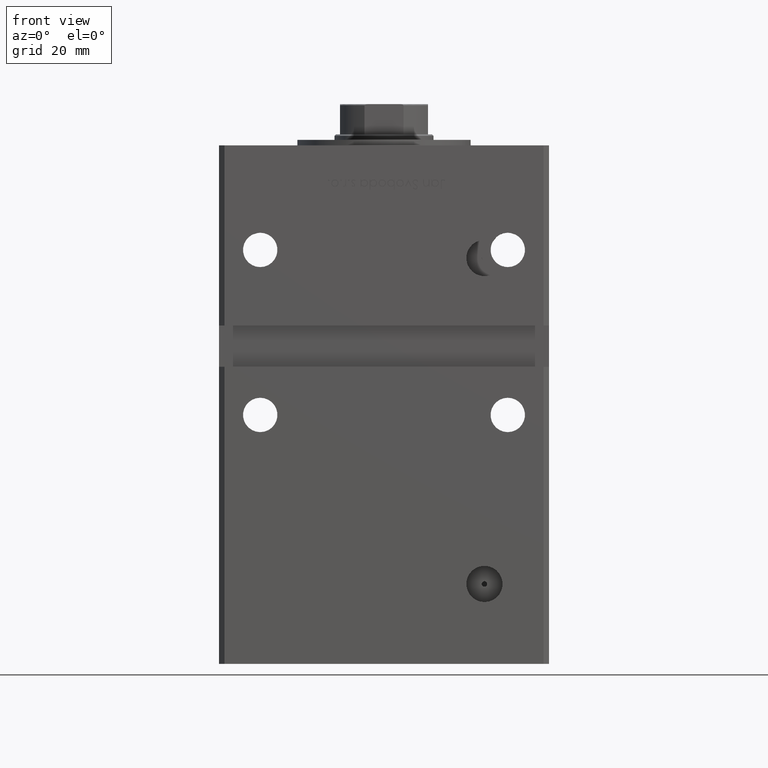
[diagram: clean part render]
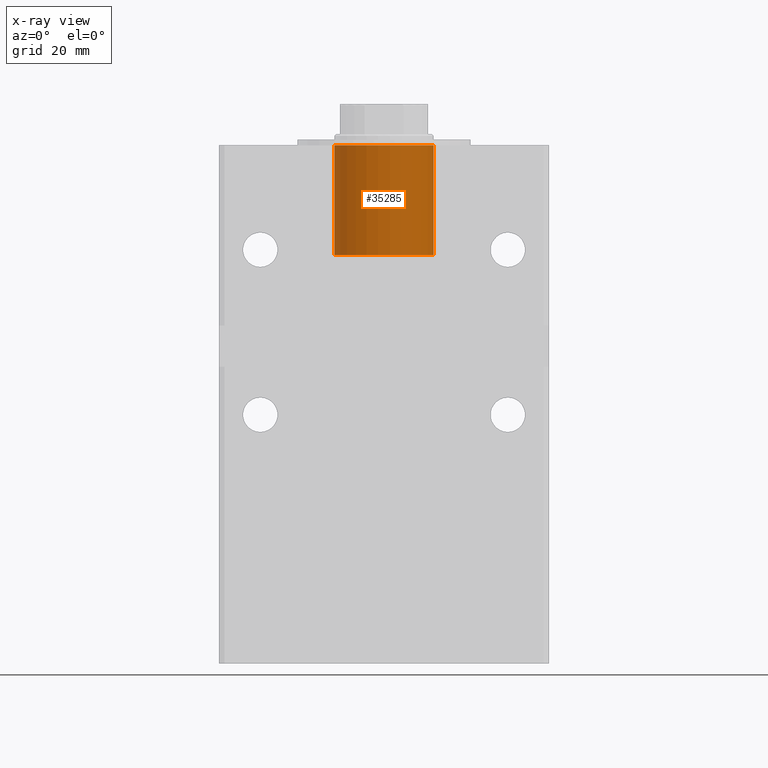
[diagram: x-ray — body ghosted, one internal face saturated and labeled with its STEP entity id]
A machine part, front view, then the same camera in x-ray: the body is ghosted and one INTERNAL B-rep face — a face not visible from any outside direction — is saturated and labeled: STEP entity #35285.
In plain terms, the highlighted cylindrical surface (partial cylindrical patch) has radius 18 mm, axis along (0, 0, 1).
Its self-contained STEP definition (entity closure, byte-faithful):
#596 = VERTEX_POINT ( 'NONE', #20806 ) ;
#5777 = LINE ( 'NONE', #10322, #33372 ) ;
#6171 = CARTESIAN_POINT ( 'NONE',  ( 0.000000000000000000, -6.938893903907228378E-15, -40.00000000000000000 ) ) ;
#8672 = VECTOR ( 'NONE', #20788, 1000.000000000000000 ) ;
#8685 = VERTEX_POINT ( 'NONE', #21270 ) ;
#10322 = CARTESIAN_POINT ( 'NONE',  ( -18.00000000000000000, -4.734529665441992555E-15, -40.00000000000000000 ) ) ;
#11314 = ORIENTED_EDGE ( 'NONE', *, *, #39261, .F. ) ;
#14308 = CARTESIAN_POINT ( 'NONE',  ( 0.000000000000000000, -6.938893903907228378E-15, 0.000000000000000000 ) ) ;
#15054 = CIRCLE ( 'NONE', #47723, 18.00000000000000000 ) ;
#15963 = CARTESIAN_POINT ( 'NONE',  ( 18.00000000000000000, -6.938893903907228378E-15, -40.00000000000000000 ) ) ;
#17147 = AXIS2_PLACEMENT_3D ( 'NONE', #55542, #37647, #20571 ) ;
#20213 = EDGE_CURVE ( 'NONE', #8685, #35298, #20540, .T. ) ;
#20540 = CIRCLE ( 'NONE', #48683, 18.00000000000000000 ) ;
#20571 = DIRECTION ( 'NONE',  ( 1.000000000000000000, 0.000000000000000000, 0.000000000000000000 ) ) ;
#20788 = DIRECTION ( 'NONE',  ( -0.000000000000000000, -0.000000000000000000, 1.000000000000000000 ) ) ;
#20806 = CARTESIAN_POINT ( 'NONE',  ( 18.00000000000000000, -6.938893903907228378E-15, -40.00000000000000000 ) ) ;
#21270 = CARTESIAN_POINT ( 'NONE',  ( -18.00000000000000000, -4.734529665441992555E-15, 0.000000000000000000 ) ) ;
#25977 = DIRECTION ( 'NONE',  ( 0.000000000000000000, 0.000000000000000000, 1.000000000000000000 ) ) ;
#26744 = VERTEX_POINT ( 'NONE', #27873 ) ;
#27873 = CARTESIAN_POINT ( 'NONE',  ( -18.00000000000000000, -4.734529665441992555E-15, -40.00000000000000000 ) ) ;
#30929 = LINE ( 'NONE', #15963, #8672 ) ;
#33111 = ORIENTED_EDGE ( 'NONE', *, *, #48653, .T. ) ;
#33372 = VECTOR ( 'NONE', #49284, 1000.000000000000000 ) ;
#34211 = CYLINDRICAL_SURFACE ( 'NONE', #17147, 18.00000000000000000 ) ;
#35285 = ADVANCED_FACE ( 'NONE', ( #47281 ), #34211, .F. ) ;
#35298 = VERTEX_POINT ( 'NONE', #41921 ) ;
#37647 = DIRECTION ( 'NONE',  ( -0.000000000000000000, -0.000000000000000000, 1.000000000000000000 ) ) ;
#39204 = ORIENTED_EDGE ( 'NONE', *, *, #39335, .F. ) ;
#39261 = EDGE_CURVE ( 'NONE', #596, #35298, #30929, .T. ) ;
#39335 = EDGE_CURVE ( 'NONE', #26744, #596, #15054, .T. ) ;
#41291 = EDGE_LOOP ( 'NONE', ( #39204, #33111, #43121, #11314 ) ) ;
#41921 = CARTESIAN_POINT ( 'NONE',  ( 18.00000000000000000, -6.938893903907228378E-15, 0.000000000000000000 ) ) ;
#43121 = ORIENTED_EDGE ( 'NONE', *, *, #20213, .T. ) ;
#43333 = DIRECTION ( 'NONE',  ( 1.000000000000000000, 0.000000000000000000, 0.000000000000000000 ) ) ;
#44302 = DIRECTION ( 'NONE',  ( 1.000000000000000000, 0.000000000000000000, 0.000000000000000000 ) ) ;
#47281 = FACE_OUTER_BOUND ( 'NONE', #41291, .T. ) ;
#47723 = AXIS2_PLACEMENT_3D ( 'NONE', #6171, #48557, #44302 ) ;
#48557 = DIRECTION ( 'NONE',  ( 0.000000000000000000, 0.000000000000000000, 1.000000000000000000 ) ) ;
#48653 = EDGE_CURVE ( 'NONE', #26744, #8685, #5777, .T. ) ;
#48683 = AXIS2_PLACEMENT_3D ( 'NONE', #14308, #25977, #43333 ) ;
#49284 = DIRECTION ( 'NONE',  ( -0.000000000000000000, -0.000000000000000000, 1.000000000000000000 ) ) ;
#55542 = CARTESIAN_POINT ( 'NONE',  ( 0.000000000000000000, -6.938893903907228378E-15, -40.00000000000000000 ) ) ;